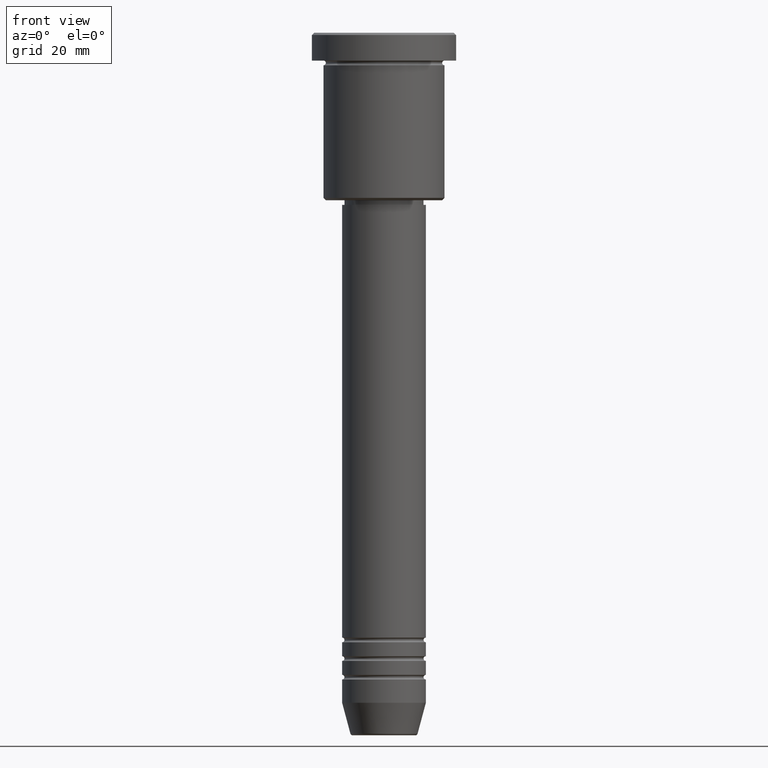
[diagram: clean part render]
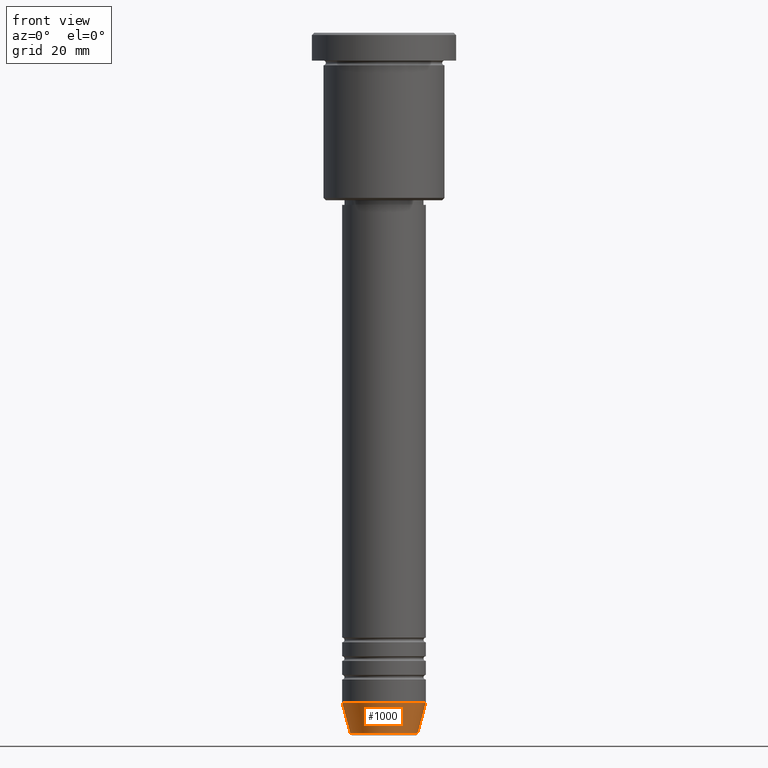
[diagram: same view with one face highlighted and labeled with its STEP entity id]
A machine part, front view. The second image highlights one B-rep face of the part: STEP entity #1000.
In plain terms, the highlighted conical surface has half-angle 15 deg.
Its self-contained STEP definition (entity closure, byte-faithful):
#5 = VECTOR ( 'NONE', #989, 1000.000000000000000 ) ;
#7 = CARTESIAN_POINT ( 'NONE',  ( -9.000000000000000000, 1.102182119232617714E-15, -144.0000000000000284 ) ) ;
#96 = EDGE_CURVE ( 'NONE', #121, #858, #135, .T. ) ;
#107 = VERTEX_POINT ( 'NONE', #857 ) ;
#121 = VERTEX_POINT ( 'NONE', #833 ) ;
#123 = CARTESIAN_POINT ( 'NONE',  ( -9.000000000000000000, 1.102182119232617714E-15, -144.0000000000000284 ) ) ;
#135 = LINE ( 'NONE', #123, #919 ) ;
#138 = FACE_OUTER_BOUND ( 'NONE', #903, .T. ) ;
#143 = CARTESIAN_POINT ( 'NONE',  ( 7.223655072137188604, 0.000000000000000000, -150.6294095225512990 ) ) ;
#167 = EDGE_CURVE ( 'NONE', #858, #107, #1147, .T. ) ;
#177 = CIRCLE ( 'NONE', #786, 7.223655072137188604 ) ;
#209 = EDGE_CURVE ( 'NONE', #121, #1025, #177, .T. ) ;
#233 = AXIS2_PLACEMENT_3D ( 'NONE', #780, #955, #973 ) ;
#260 = DIRECTION ( 'NONE',  ( 1.000000000000000000, 0.000000000000000000, 0.000000000000000000 ) ) ;
#335 = DIRECTION ( 'NONE',  ( 1.000000000000000000, 0.000000000000000000, 0.000000000000000000 ) ) ;
#443 = ORIENTED_EDGE ( 'NONE', *, *, #167, .F. ) ;
#444 = CARTESIAN_POINT ( 'NONE',  ( 9.000000000000000000, 0.000000000000000000, -144.0000000000000284 ) ) ;
#497 = DIRECTION ( 'NONE',  ( -0.2588190451025213501, 3.169619151431772337E-17, 0.9659258262890680902 ) ) ;
#534 = CARTESIAN_POINT ( 'NONE',  ( 0.000000000000000000, 0.000000000000000000, -150.6294095225512990 ) ) ;
#633 = ORIENTED_EDGE ( 'NONE', *, *, #209, .T. ) ;
#723 = DIRECTION ( 'NONE',  ( -0.000000000000000000, -0.000000000000000000, 1.000000000000000000 ) ) ;
#752 = ORIENTED_EDGE ( 'NONE', *, *, #1143, .T. ) ;
#780 = CARTESIAN_POINT ( 'NONE',  ( 0.000000000000000000, 0.000000000000000000, -144.0000000000000284 ) ) ;
#786 = AXIS2_PLACEMENT_3D ( 'NONE', #534, #723, #335 ) ;
#833 = CARTESIAN_POINT ( 'NONE',  ( -7.223655072137189492, 9.934123627281765110E-16, -150.6294095225512990 ) ) ;
#857 = CARTESIAN_POINT ( 'NONE',  ( 9.000000000000000000, 0.000000000000000000, -144.0000000000000284 ) ) ;
#858 = VERTEX_POINT ( 'NONE', #7 ) ;
#903 = EDGE_LOOP ( 'NONE', ( #1015, #633, #752, #443 ) ) ;
#919 = VECTOR ( 'NONE', #497, 1000.000000000000000 ) ;
#924 = CONICAL_SURFACE ( 'NONE', #233, 9.000000000000000000, 0.2617993877991500740 ) ;
#955 = DIRECTION ( 'NONE',  ( -0.000000000000000000, -0.000000000000000000, 1.000000000000000000 ) ) ;
#972 = CARTESIAN_POINT ( 'NONE',  ( 0.000000000000000000, 0.000000000000000000, -144.0000000000000284 ) ) ;
#973 = DIRECTION ( 'NONE',  ( 1.000000000000000000, 0.000000000000000000, 0.000000000000000000 ) ) ;
#989 = DIRECTION ( 'NONE',  ( 0.2588190451025213501, 0.000000000000000000, 0.9659258262890680902 ) ) ;
#1000 = ADVANCED_FACE ( 'NONE', ( #138 ), #924, .T. ) ;
#1015 = ORIENTED_EDGE ( 'NONE', *, *, #96, .F. ) ;
#1025 = VERTEX_POINT ( 'NONE', #143 ) ;
#1036 = DIRECTION ( 'NONE',  ( -0.000000000000000000, -0.000000000000000000, 1.000000000000000000 ) ) ;
#1090 = LINE ( 'NONE', #444, #5 ) ;
#1143 = EDGE_CURVE ( 'NONE', #1025, #107, #1090, .T. ) ;
#1147 = CIRCLE ( 'NONE', #1165, 9.000000000000000000 ) ;
#1165 = AXIS2_PLACEMENT_3D ( 'NONE', #972, #1036, #260 ) ;